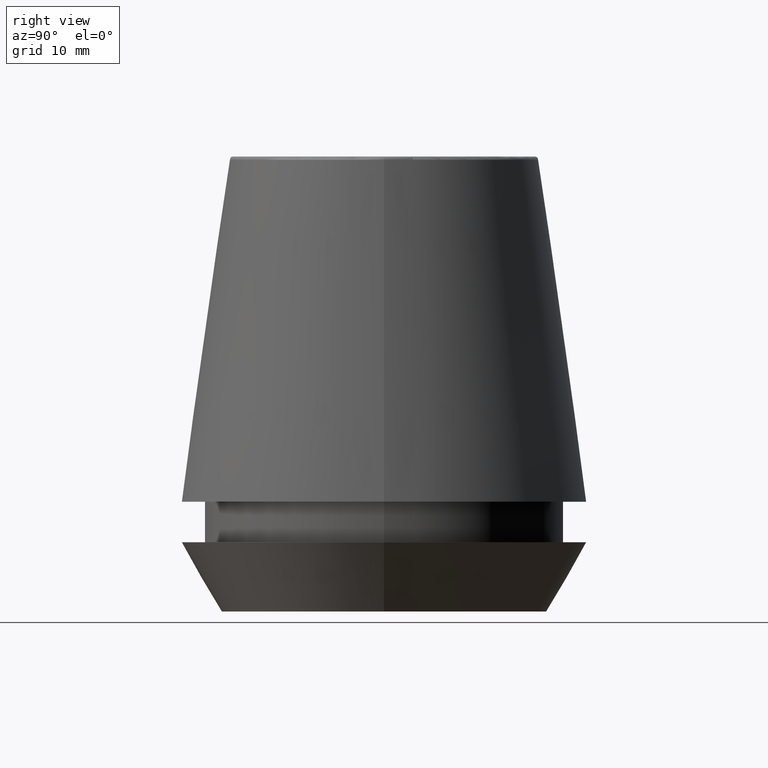
[diagram: clean part render]
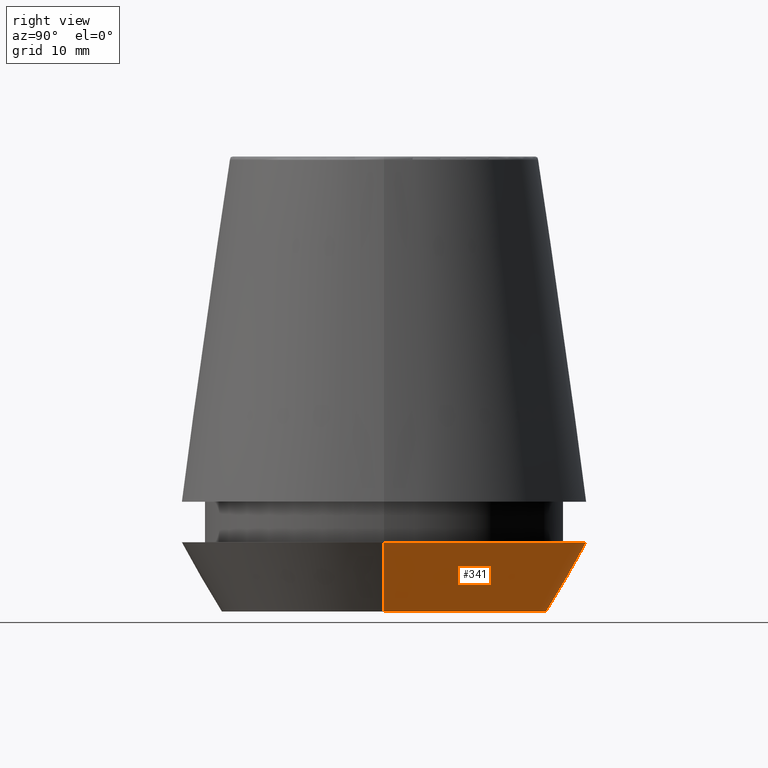
[diagram: same view with one face highlighted and labeled with its STEP entity id]
A machine part, right view. The second image highlights one B-rep face of the part: STEP entity #341.
In plain terms, the highlighted conical surface has half-angle 30 deg.
Its self-contained STEP definition (entity closure, byte-faithful):
#3 = CARTESIAN_POINT ( 'NONE',  ( -20.50000000000000000, 2.510525938252074100E-015, 7.000000000000006200 ) ) ;
#35 = CARTESIAN_POINT ( 'NONE',  ( 0.0000000000000000000, 0.0000000000000000000, 0.0000000000000000000 ) ) ;
#36 = DIRECTION ( 'NONE',  ( -0.4999999999999941700, 6.123233995736694500E-017, 0.8660254037844420400 ) ) ;
#49 = DIRECTION ( 'NONE',  ( 0.4999999999999941700, 0.0000000000000000000, 0.8660254037844420400 ) ) ;
#51 = AXIS2_PLACEMENT_3D ( 'NONE', #355, #94, #154 ) ;
#55 = EDGE_CURVE ( 'NONE', #58, #269, #137, .T. ) ;
#58 = VERTEX_POINT ( 'NONE', #93 ) ;
#68 = VERTEX_POINT ( 'NONE', #3 ) ;
#70 = DIRECTION ( 'NONE',  ( 1.000000000000000000, 0.0000000000000000000, 0.0000000000000000000 ) ) ;
#78 = DIRECTION ( 'NONE',  ( -0.0000000000000000000, -0.0000000000000000000, 1.000000000000000000 ) ) ;
#93 = CARTESIAN_POINT ( 'NONE',  ( 16.45854811567268100, 0.0000000000000000000, 0.0000000000000000000 ) ) ;
#94 = DIRECTION ( 'NONE',  ( -0.0000000000000000000, -0.0000000000000000000, 1.000000000000000000 ) ) ;
#95 = LINE ( 'NONE', #206, #244 ) ;
#96 = VERTEX_POINT ( 'NONE', #160 ) ;
#137 = CIRCLE ( 'NONE', #381, 16.45854811567268100 ) ;
#150 = LINE ( 'NONE', #271, #210 ) ;
#154 = DIRECTION ( 'NONE',  ( 1.000000000000000000, 0.0000000000000000000, 0.0000000000000000000 ) ) ;
#160 = CARTESIAN_POINT ( 'NONE',  ( 20.50000000000000000, 0.0000000000000000000, 7.000000000000006200 ) ) ;
#206 = CARTESIAN_POINT ( 'NONE',  ( 16.45854811567268100, 0.0000000000000000000, 0.0000000000000000000 ) ) ;
#210 = VECTOR ( 'NONE', #36, 1000.000000000000000 ) ;
#214 = CONICAL_SURFACE ( 'NONE', #51, 16.45854811567268100, 0.5235987755982921500 ) ;
#229 = ORIENTED_EDGE ( 'NONE', *, *, #55, .T. ) ;
#234 = CARTESIAN_POINT ( 'NONE',  ( -16.45854811567268100, 2.263058382549599700E-015, 0.0000000000000000000 ) ) ;
#236 = EDGE_LOOP ( 'NONE', ( #229, #380, #310, #262 ) ) ;
#244 = VECTOR ( 'NONE', #49, 1000.000000000000000 ) ;
#249 = EDGE_CURVE ( 'NONE', #58, #96, #95, .T. ) ;
#256 = AXIS2_PLACEMENT_3D ( 'NONE', #316, #78, #340 ) ;
#258 = DIRECTION ( 'NONE',  ( -0.0000000000000000000, -0.0000000000000000000, 1.000000000000000000 ) ) ;
#262 = ORIENTED_EDGE ( 'NONE', *, *, #249, .F. ) ;
#269 = VERTEX_POINT ( 'NONE', #234 ) ;
#271 = CARTESIAN_POINT ( 'NONE',  ( -16.45854811567268100, 2.015590826847124800E-015, 0.0000000000000000000 ) ) ;
#273 = EDGE_CURVE ( 'NONE', #96, #68, #376, .T. ) ;
#308 = EDGE_CURVE ( 'NONE', #269, #68, #150, .T. ) ;
#310 = ORIENTED_EDGE ( 'NONE', *, *, #273, .F. ) ;
#316 = CARTESIAN_POINT ( 'NONE',  ( 0.0000000000000000000, 0.0000000000000000000, 7.000000000000006200 ) ) ;
#340 = DIRECTION ( 'NONE',  ( 1.000000000000000000, 0.0000000000000000000, 0.0000000000000000000 ) ) ;
#341 = ADVANCED_FACE ( 'NONE', ( #343 ), #214, .T. ) ;
#343 = FACE_OUTER_BOUND ( 'NONE', #236, .T. ) ;
#355 = CARTESIAN_POINT ( 'NONE',  ( 0.0000000000000000000, 0.0000000000000000000, 0.0000000000000000000 ) ) ;
#376 = CIRCLE ( 'NONE', #256, 20.50000000000000000 ) ;
#380 = ORIENTED_EDGE ( 'NONE', *, *, #308, .T. ) ;
#381 = AXIS2_PLACEMENT_3D ( 'NONE', #35, #258, #70 ) ;